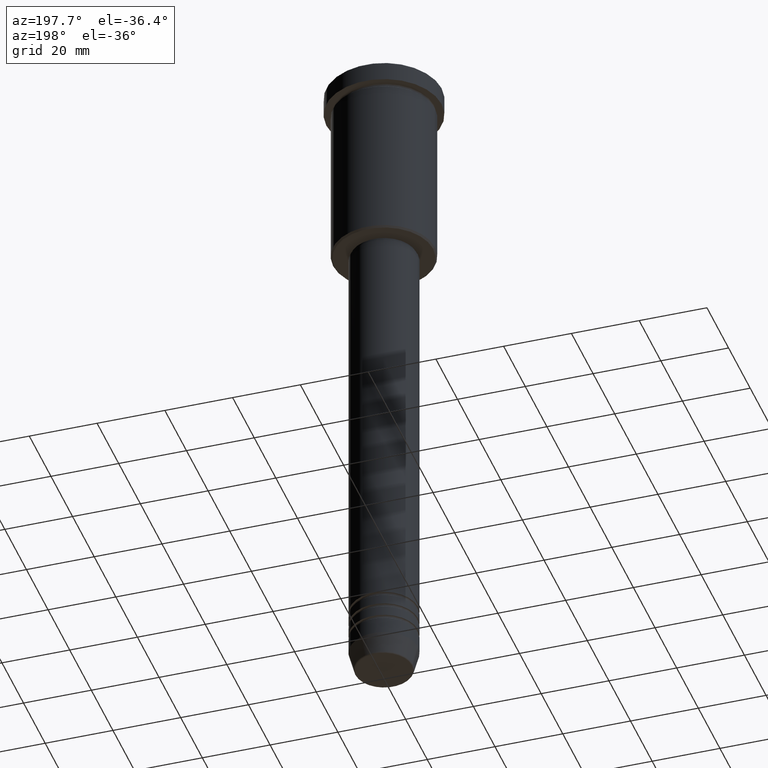
[diagram: clean part render]
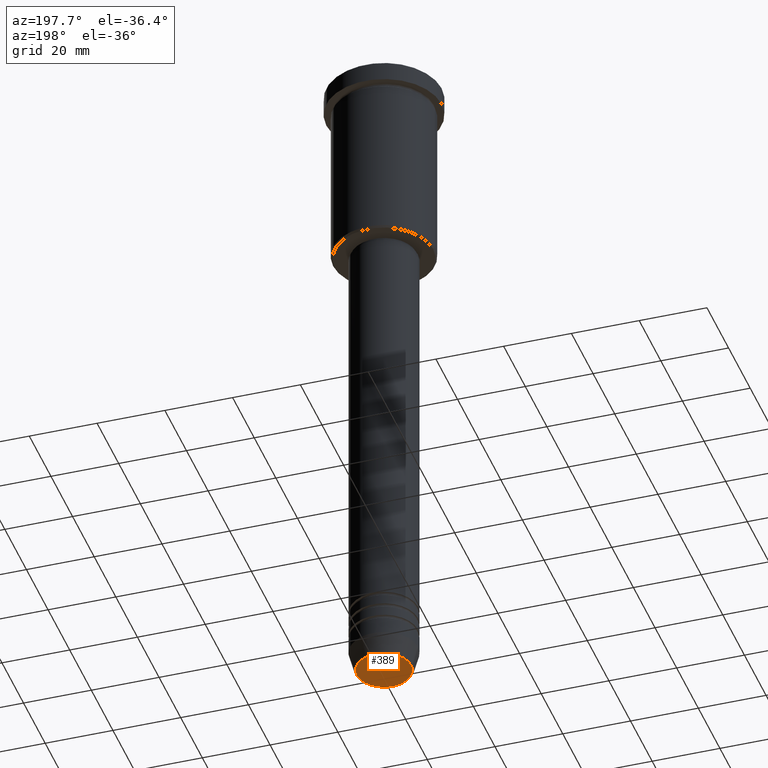
[diagram: same view with one face highlighted and labeled with its STEP entity id]
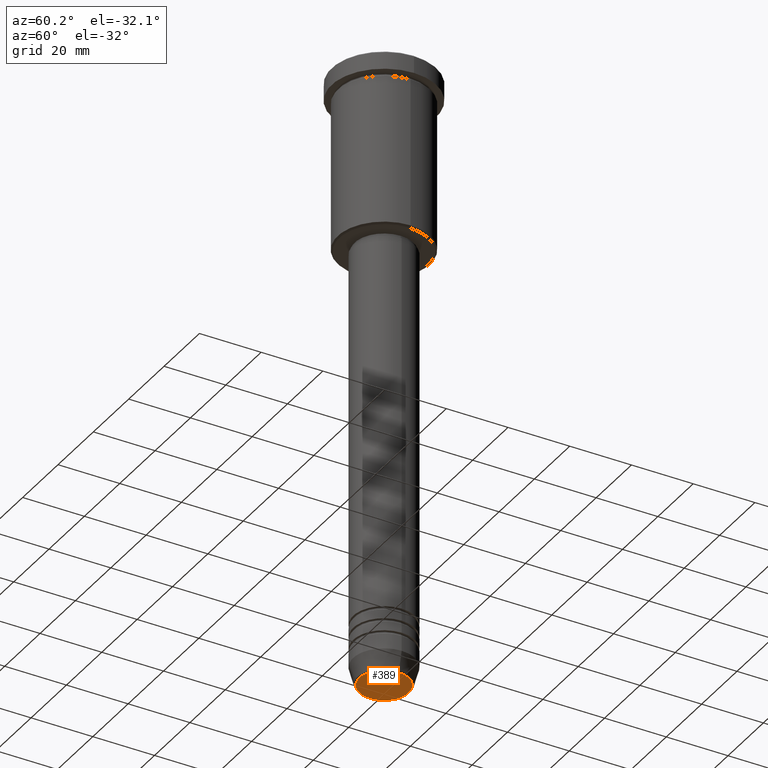
[diagram: same view with one face highlighted and labeled with its STEP entity id]
A machine part, auxiliary view. The second image highlights one B-rep face of the part: STEP entity #389.
A second angle (auxiliary view) of the same face is appended — the face is thin or edge-on in the first view.
In plain terms, the highlighted planar face has unit normal (0, -0, 1).
Its self-contained STEP definition (entity closure, byte-faithful):
#6 = PLANE ( 'NONE',  #799 ) ;
#95 = AXIS2_PLACEMENT_3D ( 'NONE', #105, #829, #1161 ) ;
#105 = CARTESIAN_POINT ( 'NONE',  ( 0.000000000000000000, 0.000000000000000000, -200.0000000000000000 ) ) ;
#147 = EDGE_CURVE ( 'NONE', #877, #962, #607, .T. ) ;
#231 = DIRECTION ( 'NONE',  ( 0.000000000000000000, 0.000000000000000000, -1.000000000000000000 ) ) ;
#352 = FACE_OUTER_BOUND ( 'NONE', #651, .T. ) ;
#370 = CARTESIAN_POINT ( 'NONE',  ( 8.008641351423790411, 0.000000000000000000, -200.0000000000000000 ) ) ;
#389 = ADVANCED_FACE ( 'NONE', ( #352 ), #6, .F. ) ;
#587 = CARTESIAN_POINT ( 'NONE',  ( -8.008641351423790411, 1.010348648938494750E-15, -200.0000000000000000 ) ) ;
#607 = CIRCLE ( 'NONE', #95, 8.008641351423790411 ) ;
#645 = CARTESIAN_POINT ( 'NONE',  ( 0.000000000000000000, 0.000000000000000000, -200.0000000000000000 ) ) ;
#651 = EDGE_LOOP ( 'NONE', ( #867, #709 ) ) ;
#709 = ORIENTED_EDGE ( 'NONE', *, *, #1109, .T. ) ;
#799 = AXIS2_PLACEMENT_3D ( 'NONE', #645, #1000, #928 ) ;
#829 = DIRECTION ( 'NONE',  ( 0.000000000000000000, 0.000000000000000000, -1.000000000000000000 ) ) ;
#867 = ORIENTED_EDGE ( 'NONE', *, *, #147, .T. ) ;
#877 = VERTEX_POINT ( 'NONE', #370 ) ;
#920 = CIRCLE ( 'NONE', #1175, 8.008641351423790411 ) ;
#928 = DIRECTION ( 'NONE',  ( 1.000000000000000000, 0.000000000000000000, 0.000000000000000000 ) ) ;
#962 = VERTEX_POINT ( 'NONE', #587 ) ;
#1000 = DIRECTION ( 'NONE',  ( 0.000000000000000000, -0.000000000000000000, 1.000000000000000000 ) ) ;
#1052 = DIRECTION ( 'NONE',  ( 1.000000000000000000, 0.000000000000000000, 0.000000000000000000 ) ) ;
#1108 = CARTESIAN_POINT ( 'NONE',  ( 0.000000000000000000, 0.000000000000000000, -200.0000000000000000 ) ) ;
#1109 = EDGE_CURVE ( 'NONE', #962, #877, #920, .T. ) ;
#1161 = DIRECTION ( 'NONE',  ( 1.000000000000000000, 0.000000000000000000, 0.000000000000000000 ) ) ;
#1175 = AXIS2_PLACEMENT_3D ( 'NONE', #1108, #231, #1052 ) ;